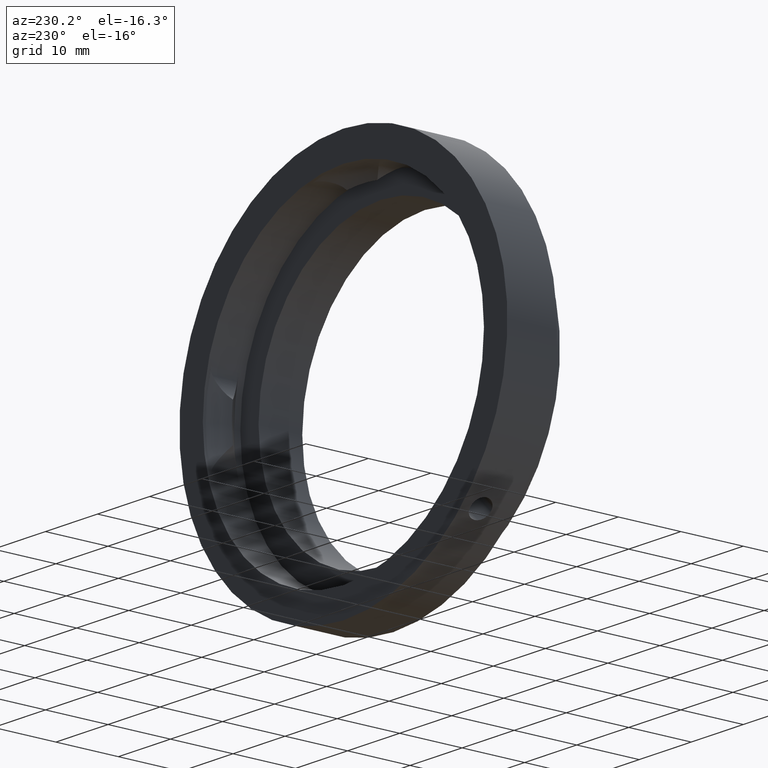
[diagram: clean part render]
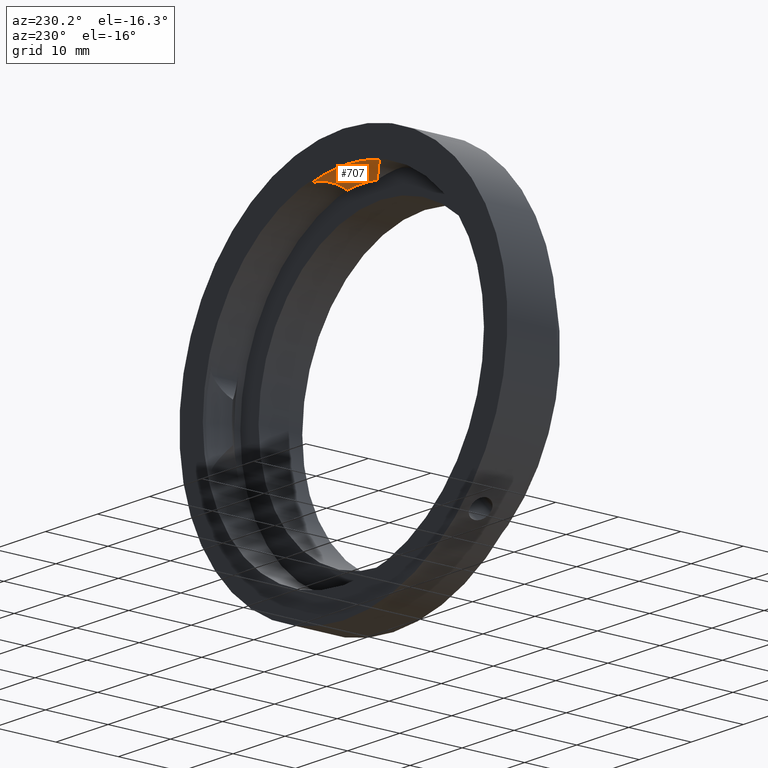
[diagram: same view with one face highlighted and labeled with its STEP entity id]
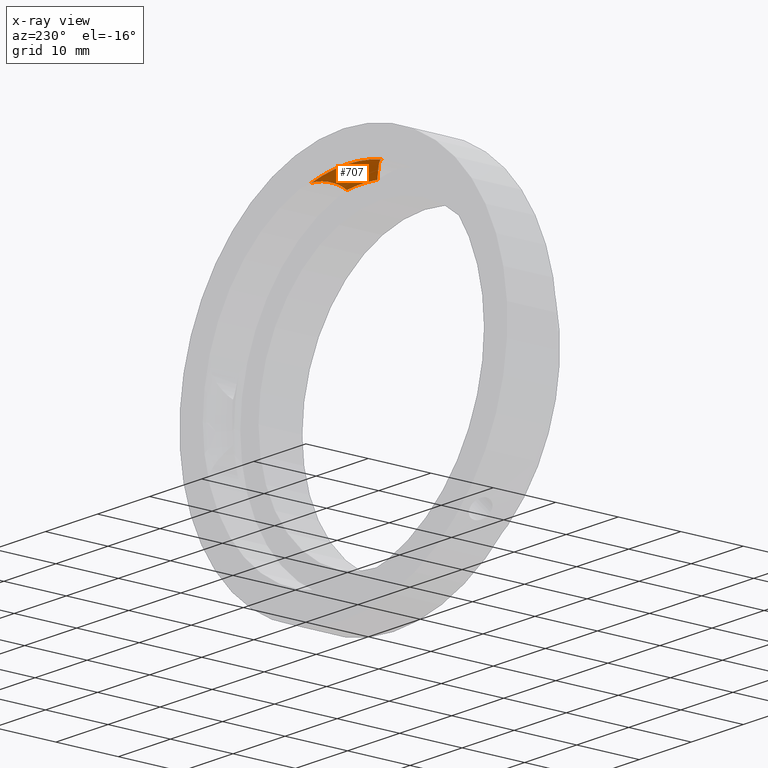
[diagram: x-ray of the same camera — body ghosted, the highlighted face saturated]
A machine part, auxiliary view. The second image highlights one B-rep face of the part: STEP entity #707.
The next image is the same camera in x-ray: the body ghosted, the highlighted face saturated — about 0% of this face is hidden behind the body in this view.
In plain terms, the highlighted toroidal blend (fillet) surface has major radius 23.1376 mm and minor (blend) radius 4 mm.
Its self-contained STEP definition (entity closure, byte-faithful):
#16 = CARTESIAN_POINT ( 'NONE',  ( -4.427170220825153100, 2.068562115853160000, 25.91415837076241500 ) ) ;
#25 = CARTESIAN_POINT ( 'NONE',  ( -5.990716938451597300, 3.156299845701445500, 26.21874977968130000 ) ) ;
#53 = CARTESIAN_POINT ( 'NONE',  ( 0.0000000000000000000, 4.536678175484936100, 0.0000000000000000000 ) ) ;
#60 = VERTEX_POINT ( 'NONE', #242 ) ;
#63 = ORIENTED_EDGE ( 'NONE', *, *, #677, .T. ) ;
#96 = B_SPLINE_CURVE_WITH_KNOTS ( 'NONE', 3,
 ( #112, #849, #488, #1129, #572, #16, #666, #941, #1046, #1134, #198, #25, #1048, #394, #294, #1051 ),
 .UNSPECIFIED., .F., .F.,
 ( 4, 2, 2, 2, 2, 2, 2, 4 ),
 ( 0.01898210336972771400, 0.02027112380169592000, 0.02091563401768002700, 0.02156014423366413000, 0.02220465444964823300, 0.02284916466563233600, 0.02349367488161644200, 0.02413818509760054500 ),
 .UNSPECIFIED. ) ;
#112 = CARTESIAN_POINT ( 'NONE',  ( -2.930234063821350900, 0.9967213114754001100, 24.82768068771671100 ) ) ;
#119 = DIRECTION ( 'NONE',  ( -1.000000000000000000, 0.0000000000000000000, -3.491481338843133400E-015 ) ) ;
#130 = CARTESIAN_POINT ( 'NONE',  ( -2.930234063821350900, 0.9967213114754001100, 24.82768068771671100 ) ) ;
#131 = VERTEX_POINT ( 'NONE', #237 ) ;
#133 = TOROIDAL_SURFACE ( 'NONE', #417, 23.13755391998808300, 3.999999999999998200 ) ;
#137 = CARTESIAN_POINT ( 'NONE',  ( 3.478206114856447200, 1.374915900929155600, 25.37388618771581500 ) ) ;
#147 = CARTESIAN_POINT ( 'NONE',  ( 6.576324070051527700, 3.430441859112263200, 26.16814135222521300 ) ) ;
#150 = CARTESIAN_POINT ( 'NONE',  ( 6.176461608255572800, 3.264208029080462900, 26.21373644101787200 ) ) ;
#184 = ORIENTED_EDGE ( 'NONE', *, *, #1075, .F. ) ;
#198 = CARTESIAN_POINT ( 'NONE',  ( -5.624942459428373500, 2.926505991418853800, 26.20493346727844800 ) ) ;
#211 = CARTESIAN_POINT ( 'NONE',  ( -6.995128393389915500, 3.496721311475398800, 26.07811685609200900 ) ) ;
#237 = CARTESIAN_POINT ( 'NONE',  ( 2.930234063821177200, 0.9967213114754001100, 24.82768068771673200 ) ) ;
#242 = CARTESIAN_POINT ( 'NONE',  ( 6.995128393389733500, 3.496721311475398800, 26.07811685609205900 ) ) ;
#246 = CIRCLE ( 'NONE', #764, 27.00000000000000000 ) ;
#294 = CARTESIAN_POINT ( 'NONE',  ( -6.784001859737151600, 3.496721311475383200, 26.13474890580259200 ) ) ;
#300 = DIRECTION ( 'NONE',  ( 0.0000000000000000000, 1.000000000000000000, 0.0000000000000000000 ) ) ;
#316 = EDGE_CURVE ( 'NONE', #1010, #60, #565, .T. ) ;
#337 = CARTESIAN_POINT ( 'NONE',  ( 6.995128393389733500, 3.496721311475398800, 26.07811685609205900 ) ) ;
#343 = B_SPLINE_CURVE_WITH_KNOTS ( 'NONE', 3,
 ( #337, #418, #990, #147, #1074, #150, #1077, #436, #1166, #508, #796, #1163, #698, #137, #606, #791 ),
 .UNSPECIFIED., .F., .F.,
 ( 4, 2, 2, 2, 2, 2, 2, 4 ),
 ( 0.02967571168659649900, 0.03000270732061694300, 0.03032970295463738700, 0.03098369422267827400, 0.03163768549071915800, 0.03229167675876004600, 0.03359965929484181500, 0.03490764183092359000 ),
 .UNSPECIFIED. ) ;
#382 = EDGE_CURVE ( 'NONE', #60, #131, #343, .T. ) ;
#389 = ORIENTED_EDGE ( 'NONE', *, *, #382, .T. ) ;
#394 = CARTESIAN_POINT ( 'NONE',  ( -6.574057318472679200, 3.436686498698582300, 26.17205975867802400 ) ) ;
#402 = DIRECTION ( 'NONE',  ( -1.000000000000000000, 0.0000000000000000000, -3.491481338843133400E-015 ) ) ;
#417 = AXIS2_PLACEMENT_3D ( 'NONE', #53, #968, #402 ) ;
#418 = CARTESIAN_POINT ( 'NONE',  ( 6.890369959208675800, 3.496721311475385000, 26.10621699466536300 ) ) ;
#436 = CARTESIAN_POINT ( 'NONE',  ( 5.622721401730266200, 2.925047112546332400, 26.20477490976898600 ) ) ;
#488 = CARTESIAN_POINT ( 'NONE',  ( -3.478457372669212100, 1.375073684623800100, 25.37436842029220700 ) ) ;
#490 = DIRECTION ( 'NONE',  ( 0.0000000000000000000, 1.000000000000000000, 0.0000000000000000000 ) ) ;
#492 = DIRECTION ( 'NONE',  ( -1.000000000000000000, 0.0000000000000000000, -3.491481338843133400E-015 ) ) ;
#508 = CARTESIAN_POINT ( 'NONE',  ( 5.096502573787230300, 2.557957266638824800, 26.12462800761270300 ) ) ;
#532 = CIRCLE ( 'NONE', #1162, 25.00000000000000700 ) ;
#565 = CIRCLE ( 'NONE', #873, 27.00000000000000000 ) ;
#572 = CARTESIAN_POINT ( 'NONE',  ( -4.103152441285449600, 1.830174454562539100, 25.76272030198454400 ) ) ;
#606 = CARTESIAN_POINT ( 'NONE',  ( 3.191593146655715700, 1.171116483468208800, 25.13060839574638200 ) ) ;
#666 = CARTESIAN_POINT ( 'NONE',  ( -4.591671003984013800, 2.189878321712847700, 25.97789981197561800 ) ) ;
#676 = FACE_OUTER_BOUND ( 'NONE', #954, .T. ) ;
#677 = EDGE_CURVE ( 'NONE', #730, #715, #96, .T. ) ;
#698 = CARTESIAN_POINT ( 'NONE',  ( 4.092638508915753100, 1.821306898424041500, 25.77156020181131200 ) ) ;
#707 = ADVANCED_FACE ( 'NONE', ( #676 ), #133, .F. ) ;
#715 = VERTEX_POINT ( 'NONE', #211 ) ;
#730 = VERTEX_POINT ( 'NONE', #130 ) ;
#764 = AXIS2_PLACEMENT_3D ( 'NONE', #766, #300, #1148 ) ;
#766 = CARTESIAN_POINT ( 'NONE',  ( 0.0000000000000000000, 3.496721311475398800, 0.0000000000000000000 ) ) ;
#791 = CARTESIAN_POINT ( 'NONE',  ( 2.930234063821177200, 0.9967213114754001100, 24.82768068771673200 ) ) ;
#796 = CARTESIAN_POINT ( 'NONE',  ( 4.926267649629315800, 2.434475195813563500, 26.08312791995818700 ) ) ;
#849 = CARTESIAN_POINT ( 'NONE',  ( -3.190776124182679800, 1.170571314832312700, 25.12966142752710400 ) ) ;
#867 = DIRECTION ( 'NONE',  ( 0.0000000000000000000, 1.000000000000000000, 0.0000000000000000000 ) ) ;
#873 = AXIS2_PLACEMENT_3D ( 'NONE', #1054, #867, #492 ) ;
#883 = ORIENTED_EDGE ( 'NONE', *, *, #1122, .T. ) ;
#941 = CARTESIAN_POINT ( 'NONE',  ( -4.926562052838838700, 2.434687447786468200, 26.08318890901428200 ) ) ;
#954 = EDGE_LOOP ( 'NONE', ( #184, #63, #883, #988, #389 ) ) ;
#968 = DIRECTION ( 'NONE',  ( 0.0000000000000000000, 1.000000000000000000, 0.0000000000000000000 ) ) ;
#988 = ORIENTED_EDGE ( 'NONE', *, *, #316, .T. ) ;
#990 = CARTESIAN_POINT ( 'NONE',  ( 6.783403477527033800, 3.482070185147443400, 26.13019098067393700 ) ) ;
#1010 = VERTEX_POINT ( 'NONE', #1145 ) ;
#1046 = CARTESIAN_POINT ( 'NONE',  ( -5.096898461977928300, 2.558251228571919000, 26.12474405187087700 ) ) ;
#1048 = CARTESIAN_POINT ( 'NONE',  ( -6.179825307003493900, 3.265890396028753500, 26.21349665395737800 ) ) ;
#1051 = CARTESIAN_POINT ( 'NONE',  ( -6.995128393389915500, 3.496721311475398800, 26.07811685609200900 ) ) ;
#1054 = CARTESIAN_POINT ( 'NONE',  ( 0.0000000000000000000, 3.496721311475398800, 0.0000000000000000000 ) ) ;
#1055 = CARTESIAN_POINT ( 'NONE',  ( 0.0000000000000000000, 0.9967213114754001100, 0.0000000000000000000 ) ) ;
#1074 = CARTESIAN_POINT ( 'NONE',  ( 6.473812897067956500, 3.393367494006793700, 26.18265215941479000 ) ) ;
#1075 = EDGE_CURVE ( 'NONE', #730, #131, #532, .T. ) ;
#1077 = CARTESIAN_POINT ( 'NONE',  ( 5.989704100088260000, 3.155726506840639700, 26.21878552896441800 ) ) ;
#1122 = EDGE_CURVE ( 'NONE', #715, #1010, #246, .T. ) ;
#1129 = CARTESIAN_POINT ( 'NONE',  ( -3.942588917903979700, 1.712306965547125500, 25.67428312446258000 ) ) ;
#1134 = CARTESIAN_POINT ( 'NONE',  ( -5.446043343028457600, 2.803997842111122000, 26.18564542048925900 ) ) ;
#1145 = CARTESIAN_POINT ( 'NONE',  ( 3.306546357697853700E-015, 3.496721311475398800, 27.00000000000000000 ) ) ;
#1148 = DIRECTION ( 'NONE',  ( -1.000000000000000000, 0.0000000000000000000, -3.491481338843133400E-015 ) ) ;
#1162 = AXIS2_PLACEMENT_3D ( 'NONE', #1055, #490, #119 ) ;
#1163 = CARTESIAN_POINT ( 'NONE',  ( 4.422850623913300100, 2.066462786193641300, 25.92475968494378000 ) ) ;
#1166 = CARTESIAN_POINT ( 'NONE',  ( 5.444379283236768800, 2.802841813374081800, 26.18540187044181200 ) ) ;